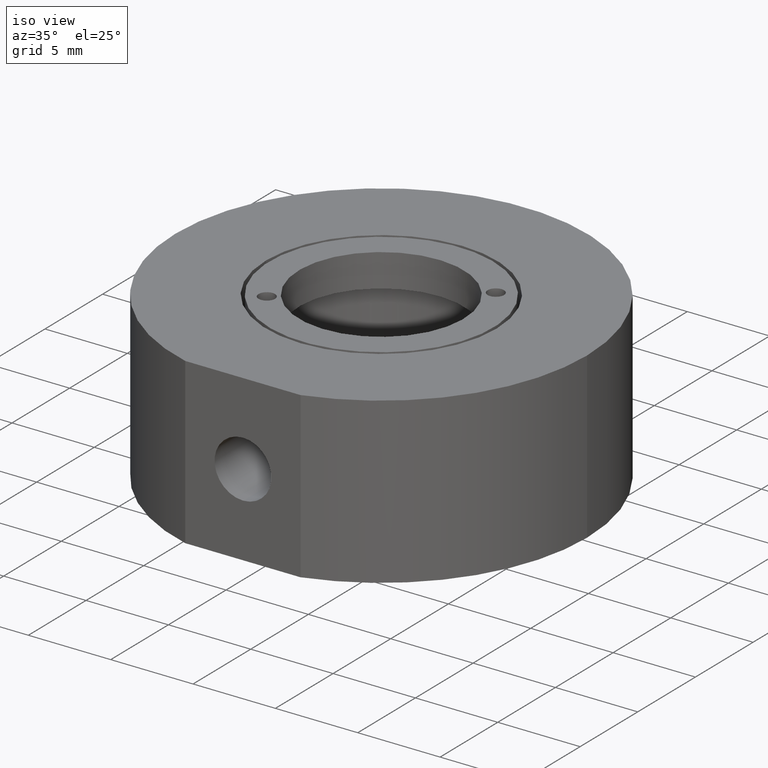
[diagram: clean part render]
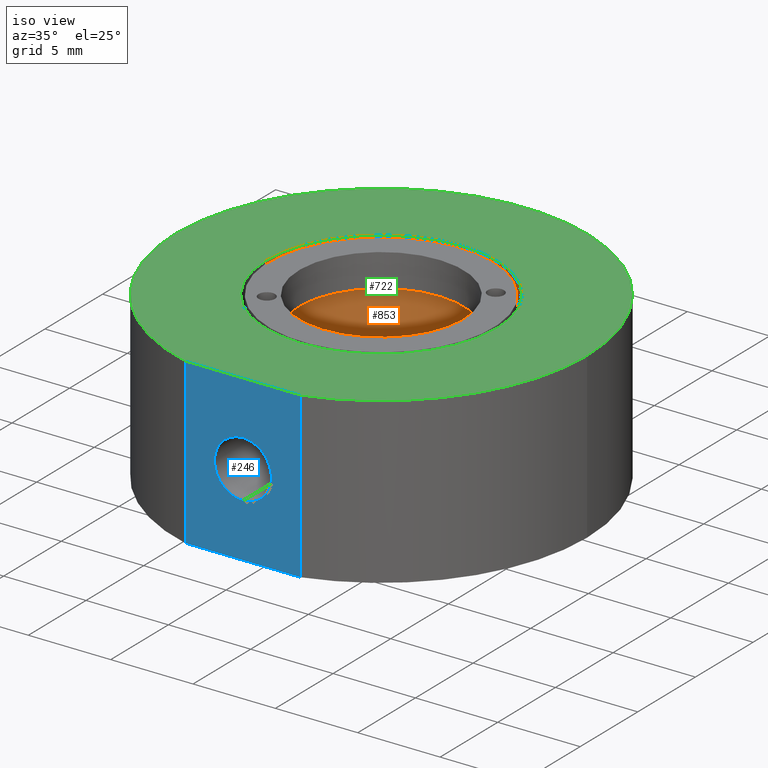
[diagram: same view with three faces highlighted in distinct colors, each labeled with its STEP entity id]
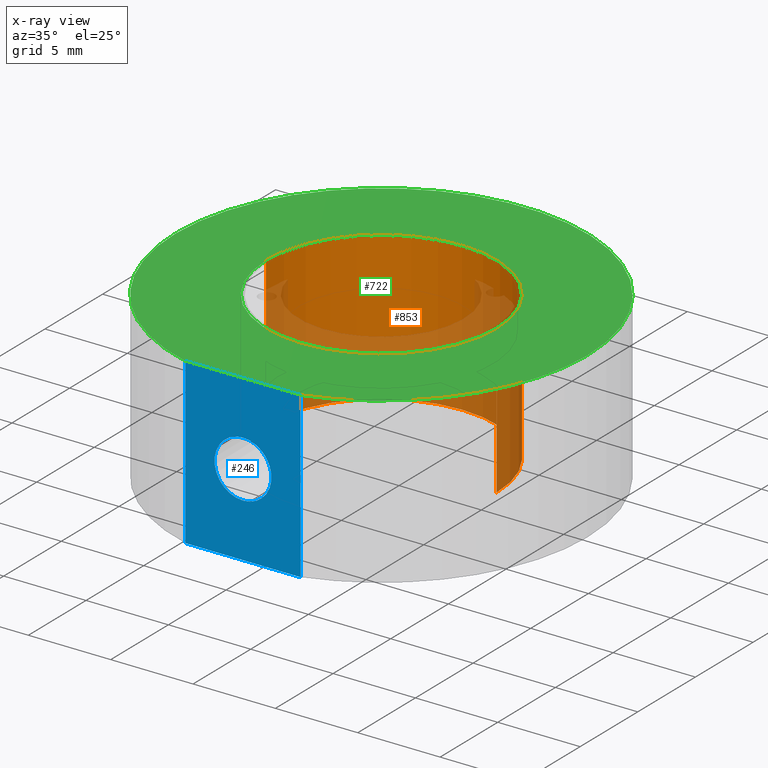
[diagram: x-ray of the same camera — body ghosted, the three highlighted faces saturated]
A machine part, iso view with three faces highlighted in distinct colors.
The next image is the same camera in x-ray (body ghosted, the three faces saturated) — at least one of them is partly hidden behind the body in this view.
Their STEP definitions:

[orange] entity #853 — the highlighted cylindrical surface (partial cylindrical patch) has radius 7 mm, axis along (-0, -0, 1).
#19 = CARTESIAN_POINT ( 'NONE',  ( -17.64545028811109300, 4.389876407468494600, -6.499999999999999100 ) ) ;
#33 = DIRECTION ( 'NONE',  ( 1.000000000000000000, 0.0000000000000000000, 0.0000000000000000000 ) ) ;
#35 = AXIS2_PLACEMENT_3D ( 'NONE', #260, #865, #33 ) ;
#110 = ORIENTED_EDGE ( 'NONE', *, *, #825, .F. ) ;
#128 = AXIS2_PLACEMENT_3D ( 'NONE', #862, #942, #489 ) ;
#153 = LINE ( 'NONE', #602, #484 ) ;
#229 = VERTEX_POINT ( 'NONE', #666 ) ;
#260 = CARTESIAN_POINT ( 'NONE',  ( -10.64545028811109300, 4.389876407468493700, 2.500000000000000400 ) ) ;
#268 = FACE_OUTER_BOUND ( 'NONE', #881, .T. ) ;
#377 = DIRECTION ( 'NONE',  ( -0.0000000000000000000, -0.0000000000000000000, 1.000000000000000000 ) ) ;
#386 = VERTEX_POINT ( 'NONE', #19 ) ;
#415 = CARTESIAN_POINT ( 'NONE',  ( -10.64545028811109300, 4.389876407468493700, -6.499999999999999100 ) ) ;
#471 = LINE ( 'NONE', #769, #596 ) ;
#484 = VECTOR ( 'NONE', #754, 1000.000000000000000 ) ;
#489 = DIRECTION ( 'NONE',  ( 1.000000000000000000, 0.0000000000000000000, 0.0000000000000000000 ) ) ;
#491 = AXIS2_PLACEMENT_3D ( 'NONE', #415, #658, #955 ) ;
#557 = EDGE_CURVE ( 'NONE', #638, #229, #153, .T. ) ;
#561 = CIRCLE ( 'NONE', #128, 7.000000000000000000 ) ;
#577 = CYLINDRICAL_SURFACE ( 'NONE', #491, 7.000000000000000000 ) ;
#596 = VECTOR ( 'NONE', #377, 1000.000000000000000 ) ;
#602 = CARTESIAN_POINT ( 'NONE',  ( -3.645450288111093100, 4.389876407468493700, -6.499999999999999100 ) ) ;
#613 = ORIENTED_EDGE ( 'NONE', *, *, #627, .F. ) ;
#621 = CARTESIAN_POINT ( 'NONE',  ( -3.645450288111093100, 4.389876407468493700, -6.499999999999999100 ) ) ;
#627 = EDGE_CURVE ( 'NONE', #386, #778, #471, .T. ) ;
#638 = VERTEX_POINT ( 'NONE', #621 ) ;
#658 = DIRECTION ( 'NONE',  ( -0.0000000000000000000, -0.0000000000000000000, 1.000000000000000000 ) ) ;
#666 = CARTESIAN_POINT ( 'NONE',  ( -3.645450288111093100, 4.389876407468493700, 2.500000000000000400 ) ) ;
#706 = ORIENTED_EDGE ( 'NONE', *, *, #557, .T. ) ;
#711 = CARTESIAN_POINT ( 'NONE',  ( -17.64545028811109300, 4.389876407468494600, 2.500000000000000400 ) ) ;
#754 = DIRECTION ( 'NONE',  ( -0.0000000000000000000, -0.0000000000000000000, 1.000000000000000000 ) ) ;
#769 = CARTESIAN_POINT ( 'NONE',  ( -17.64545028811109300, 4.389876407468494600, -6.499999999999999100 ) ) ;
#778 = VERTEX_POINT ( 'NONE', #711 ) ;
#788 = EDGE_CURVE ( 'NONE', #229, #778, #970, .T. ) ;
#825 = EDGE_CURVE ( 'NONE', #638, #386, #561, .T. ) ;
#853 = ADVANCED_FACE ( 'NONE', ( #268 ), #577, .F. ) ;
#862 = CARTESIAN_POINT ( 'NONE',  ( -10.64545028811109300, 4.389876407468493700, -6.499999999999999100 ) ) ;
#865 = DIRECTION ( 'NONE',  ( 0.0000000000000000000, 0.0000000000000000000, 1.000000000000000000 ) ) ;
#881 = EDGE_LOOP ( 'NONE', ( #613, #110, #706, #898 ) ) ;
#898 = ORIENTED_EDGE ( 'NONE', *, *, #788, .T. ) ;
#942 = DIRECTION ( 'NONE',  ( 0.0000000000000000000, 0.0000000000000000000, 1.000000000000000000 ) ) ;
#955 = DIRECTION ( 'NONE',  ( 1.000000000000000000, 0.0000000000000000000, 0.0000000000000000000 ) ) ;
#970 = CIRCLE ( 'NONE', #35, 7.000000000000000000 ) ;

[blue] entity #246 — the highlighted planar face has unit normal (0, 1, 0).
#4 = DIRECTION ( 'NONE',  ( 1.000000000000000000, 0.0000000000000000000, 0.0000000000000000000 ) ) ;
#37 = LINE ( 'NONE', #76, #454 ) ;
#42 = DIRECTION ( 'NONE',  ( -0.0000000000000000000, -0.0000000000000000000, -1.000000000000000000 ) ) ;
#73 = EDGE_CURVE ( 'NONE', #217, #207, #667, .T. ) ;
#76 = CARTESIAN_POINT ( 'NONE',  ( -14.14545028811109600, -7.610123592531506300, 2.500000000000000400 ) ) ;
#102 = DIRECTION ( 'NONE',  ( -0.0000000000000000000, -1.000000000000000000, -0.0000000000000000000 ) ) ;
#119 = LINE ( 'NONE', #562, #607 ) ;
#130 = PLANE ( 'NONE',  #232 ) ;
#135 = VECTOR ( 'NONE', #639, 1000.000000000000000 ) ;
#164 = DIRECTION ( 'NONE',  ( 0.0000000000000000000, 1.000000000000000000, 0.0000000000000000000 ) ) ;
#186 = CARTESIAN_POINT ( 'NONE',  ( -14.14545028811109600, -7.610123592531506300, -7.500000000000000000 ) ) ;
#203 = VECTOR ( 'NONE', #403, 1000.000000000000000 ) ;
#207 = VERTEX_POINT ( 'NONE', #731 ) ;
#217 = VERTEX_POINT ( 'NONE', #893 ) ;
#232 = AXIS2_PLACEMENT_3D ( 'NONE', #425, #164, #616 ) ;
#246 = ADVANCED_FACE ( 'NONE', ( #299, #280 ), #130, .F. ) ;
#265 = VERTEX_POINT ( 'NONE', #758 ) ;
#280 = FACE_OUTER_BOUND ( 'NONE', #939, .T. ) ;
#299 = FACE_BOUND ( 'NONE', #688, .T. ) ;
#334 = ORIENTED_EDGE ( 'NONE', *, *, #464, .F. ) ;
#357 = LINE ( 'NONE', #186, #203 ) ;
#361 = ORIENTED_EDGE ( 'NONE', *, *, #755, .T. ) ;
#382 = CARTESIAN_POINT ( 'NONE',  ( -10.64545028811109300, -7.610123592531506300, -2.499999999999999600 ) ) ;
#387 = CARTESIAN_POINT ( 'NONE',  ( -10.64545028811109300, -7.610123592531506300, -2.499999999999999600 ) ) ;
#391 = DIRECTION ( 'NONE',  ( -0.0000000000000000000, -1.000000000000000000, -0.0000000000000000000 ) ) ;
#403 = DIRECTION ( 'NONE',  ( 1.000000000000000000, 0.0000000000000000000, 0.0000000000000000000 ) ) ;
#425 = CARTESIAN_POINT ( 'NONE',  ( -14.14545028811109600, -7.610123592531506300, 2.500000000000000400 ) ) ;
#454 = VECTOR ( 'NONE', #4, 1000.000000000000000 ) ;
#459 = DIRECTION ( 'NONE',  ( 0.0000000000000000000, 0.0000000000000000000, -1.000000000000000000 ) ) ;
#464 = EDGE_CURVE ( 'NONE', #626, #217, #37, .T. ) ;
#465 = DIRECTION ( 'NONE',  ( 0.0000000000000000000, 0.0000000000000000000, -1.000000000000000000 ) ) ;
#553 = CARTESIAN_POINT ( 'NONE',  ( -14.14545028811109800, -7.610123592531504500, 2.500000000000000400 ) ) ;
#562 = CARTESIAN_POINT ( 'NONE',  ( -14.14545028811109800, -7.610123592531504500, 2.500000000000000400 ) ) ;
#594 = EDGE_CURVE ( 'NONE', #265, #895, #879, .T. ) ;
#598 = ORIENTED_EDGE ( 'NONE', *, *, #777, .T. ) ;
#607 = VECTOR ( 'NONE', #42, 1000.000000000000000 ) ;
#616 = DIRECTION ( 'NONE',  ( 0.0000000000000000000, -0.0000000000000000000, 1.000000000000000000 ) ) ;
#626 = VERTEX_POINT ( 'NONE', #553 ) ;
#639 = DIRECTION ( 'NONE',  ( -0.0000000000000000000, -0.0000000000000000000, -1.000000000000000000 ) ) ;
#647 = ORIENTED_EDGE ( 'NONE', *, *, #594, .F. ) ;
#667 = LINE ( 'NONE', #716, #135 ) ;
#682 = EDGE_CURVE ( 'NONE', #895, #265, #749, .T. ) ;
#688 = EDGE_LOOP ( 'NONE', ( #647, #787 ) ) ;
#716 = CARTESIAN_POINT ( 'NONE',  ( -7.145450288111090000, -7.610123592531506300, 2.500000000000000400 ) ) ;
#724 = ORIENTED_EDGE ( 'NONE', *, *, #73, .F. ) ;
#731 = CARTESIAN_POINT ( 'NONE',  ( -7.145450288111090000, -7.610123592531506300, -7.500000000000000000 ) ) ;
#732 = CARTESIAN_POINT ( 'NONE',  ( -14.14545028811109800, -7.610123592531504500, -7.500000000000000000 ) ) ;
#733 = AXIS2_PLACEMENT_3D ( 'NONE', #382, #391, #465 ) ;
#749 = CIRCLE ( 'NONE', #733, 1.727199999999999800 ) ;
#753 = AXIS2_PLACEMENT_3D ( 'NONE', #387, #102, #459 ) ;
#755 = EDGE_CURVE ( 'NONE', #626, #918, #119, .T. ) ;
#758 = CARTESIAN_POINT ( 'NONE',  ( -10.64545028811109300, -7.610123592531506300, -4.227199999999999800 ) ) ;
#777 = EDGE_CURVE ( 'NONE', #918, #207, #357, .T. ) ;
#787 = ORIENTED_EDGE ( 'NONE', *, *, #682, .F. ) ;
#805 = CARTESIAN_POINT ( 'NONE',  ( -10.64545028811109300, -7.610123592531506300, -0.7727999999999997100 ) ) ;
#879 = CIRCLE ( 'NONE', #753, 1.727199999999999800 ) ;
#893 = CARTESIAN_POINT ( 'NONE',  ( -7.145450288111090000, -7.610123592531506300, 2.500000000000000400 ) ) ;
#895 = VERTEX_POINT ( 'NONE', #805 ) ;
#918 = VERTEX_POINT ( 'NONE', #732 ) ;
#939 = EDGE_LOOP ( 'NONE', ( #598, #724, #334, #361 ) ) ;

[green] entity #722 — the highlighted planar face has unit normal (0, 0, 1).
#4 = DIRECTION ( 'NONE',  ( 1.000000000000000000, 0.0000000000000000000, 0.0000000000000000000 ) ) ;
#33 = DIRECTION ( 'NONE',  ( 1.000000000000000000, 0.0000000000000000000, 0.0000000000000000000 ) ) ;
#35 = AXIS2_PLACEMENT_3D ( 'NONE', #260, #865, #33 ) ;
#37 = LINE ( 'NONE', #76, #454 ) ;
#76 = CARTESIAN_POINT ( 'NONE',  ( -14.14545028811109600, -7.610123592531506300, 2.500000000000000400 ) ) ;
#100 = DIRECTION ( 'NONE',  ( 1.000000000000000000, 0.0000000000000000000, 0.0000000000000000000 ) ) ;
#103 = DIRECTION ( 'NONE',  ( 1.000000000000000000, 0.0000000000000000000, -0.0000000000000000000 ) ) ;
#138 = DIRECTION ( 'NONE',  ( 1.000000000000000000, 0.0000000000000000000, 0.0000000000000000000 ) ) ;
#145 = EDGE_CURVE ( 'NONE', #212, #626, #331, .T. ) ;
#175 = DIRECTION ( 'NONE',  ( 0.0000000000000000000, 0.0000000000000000000, 1.000000000000000000 ) ) ;
#176 = AXIS2_PLACEMENT_3D ( 'NONE', #585, #809, #721 ) ;
#206 = DIRECTION ( 'NONE',  ( 0.0000000000000000000, 0.0000000000000000000, 1.000000000000000000 ) ) ;
#211 = EDGE_CURVE ( 'NONE', #217, #958, #369, .T. ) ;
#212 = VERTEX_POINT ( 'NONE', #952 ) ;
#217 = VERTEX_POINT ( 'NONE', #893 ) ;
#229 = VERTEX_POINT ( 'NONE', #666 ) ;
#260 = CARTESIAN_POINT ( 'NONE',  ( -10.64545028811109300, 4.389876407468493700, 2.500000000000000400 ) ) ;
#261 = ORIENTED_EDGE ( 'NONE', *, *, #411, .F. ) ;
#271 = ORIENTED_EDGE ( 'NONE', *, *, #937, .T. ) ;
#297 = CIRCLE ( 'NONE', #700, 7.000000000000000000 ) ;
#312 = ORIENTED_EDGE ( 'NONE', *, *, #211, .T. ) ;
#331 = CIRCLE ( 'NONE', #707, 12.50000000000000000 ) ;
#332 = ORIENTED_EDGE ( 'NONE', *, *, #464, .T. ) ;
#337 = ORIENTED_EDGE ( 'NONE', *, *, #145, .T. ) ;
#351 = DIRECTION ( 'NONE',  ( 1.000000000000000000, 0.0000000000000000000, 0.0000000000000000000 ) ) ;
#369 = CIRCLE ( 'NONE', #641, 12.50000000000000000 ) ;
#372 = ORIENTED_EDGE ( 'NONE', *, *, #788, .F. ) ;
#411 = EDGE_CURVE ( 'NONE', #778, #229, #297, .T. ) ;
#412 = PLANE ( 'NONE',  #786 ) ;
#417 = CARTESIAN_POINT ( 'NONE',  ( 1.854549711888907600, 4.389876407468495500, 2.500000000000000400 ) ) ;
#419 = CARTESIAN_POINT ( 'NONE',  ( -10.64545028811109300, 4.389876407468493700, 2.500000000000000400 ) ) ;
#454 = VECTOR ( 'NONE', #4, 1000.000000000000000 ) ;
#464 = EDGE_CURVE ( 'NONE', #626, #217, #37, .T. ) ;
#493 = CARTESIAN_POINT ( 'NONE',  ( -10.64545028811109300, 4.389876407468493700, 2.500000000000000400 ) ) ;
#525 = EDGE_LOOP ( 'NONE', ( #312, #271, #337, #332 ) ) ;
#553 = CARTESIAN_POINT ( 'NONE',  ( -14.14545028811109800, -7.610123592531504500, 2.500000000000000400 ) ) ;
#574 = DIRECTION ( 'NONE',  ( 0.0000000000000000000, 0.0000000000000000000, 1.000000000000000000 ) ) ;
#585 = CARTESIAN_POINT ( 'NONE',  ( -10.64545028811109300, 4.389876407468493700, 2.500000000000000400 ) ) ;
#626 = VERTEX_POINT ( 'NONE', #553 ) ;
#629 = EDGE_LOOP ( 'NONE', ( #372, #261 ) ) ;
#641 = AXIS2_PLACEMENT_3D ( 'NONE', #419, #961, #138 ) ;
#666 = CARTESIAN_POINT ( 'NONE',  ( -3.645450288111093100, 4.389876407468493700, 2.500000000000000400 ) ) ;
#696 = CIRCLE ( 'NONE', #176, 12.50000000000000000 ) ;
#700 = AXIS2_PLACEMENT_3D ( 'NONE', #930, #175, #100 ) ;
#707 = AXIS2_PLACEMENT_3D ( 'NONE', #741, #206, #351 ) ;
#711 = CARTESIAN_POINT ( 'NONE',  ( -17.64545028811109300, 4.389876407468494600, 2.500000000000000400 ) ) ;
#721 = DIRECTION ( 'NONE',  ( 1.000000000000000000, 0.0000000000000000000, 0.0000000000000000000 ) ) ;
#722 = ADVANCED_FACE ( 'NONE', ( #784, #735 ), #412, .T. ) ;
#735 = FACE_OUTER_BOUND ( 'NONE', #525, .T. ) ;
#741 = CARTESIAN_POINT ( 'NONE',  ( -10.64545028811109300, 4.389876407468493700, 2.500000000000000400 ) ) ;
#778 = VERTEX_POINT ( 'NONE', #711 ) ;
#784 = FACE_BOUND ( 'NONE', #629, .T. ) ;
#786 = AXIS2_PLACEMENT_3D ( 'NONE', #493, #574, #103 ) ;
#788 = EDGE_CURVE ( 'NONE', #229, #778, #970, .T. ) ;
#809 = DIRECTION ( 'NONE',  ( 0.0000000000000000000, 0.0000000000000000000, 1.000000000000000000 ) ) ;
#865 = DIRECTION ( 'NONE',  ( 0.0000000000000000000, 0.0000000000000000000, 1.000000000000000000 ) ) ;
#893 = CARTESIAN_POINT ( 'NONE',  ( -7.145450288111090000, -7.610123592531506300, 2.500000000000000400 ) ) ;
#930 = CARTESIAN_POINT ( 'NONE',  ( -10.64545028811109300, 4.389876407468493700, 2.500000000000000400 ) ) ;
#937 = EDGE_CURVE ( 'NONE', #958, #212, #696, .T. ) ;
#952 = CARTESIAN_POINT ( 'NONE',  ( -23.14545028811109600, 4.389876407468493700, 2.500000000000000400 ) ) ;
#958 = VERTEX_POINT ( 'NONE', #417 ) ;
#961 = DIRECTION ( 'NONE',  ( 0.0000000000000000000, 0.0000000000000000000, 1.000000000000000000 ) ) ;
#970 = CIRCLE ( 'NONE', #35, 7.000000000000000000 ) ;